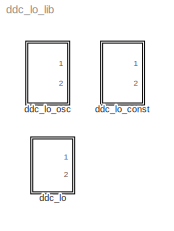
MODEL ddc_lo_lib
KIND library
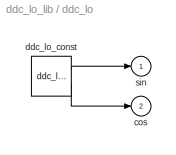
BLOCK [SubSystem] ddc_lo
  BlockChoice = ddc_lo_const
  MemberBlocks = ddc_lo_const,ddc_lo_osc
  MinAlgLoopOccurrences = off
  Ports = [0, 2]
  RTWSystemCode = Auto
  TemplateBlock = self
  TreatAsAtomicUnit = off
BLOCK [Outport] ddc_lo/cos
  BusOutputAsStruct = off
  IconDisplay = Port number
  Port = 2
BLOCK [Reference] ddc_lo/ddc_lo_const  REF=ddc_lo_lib/ddc_lo_const  (lib defined in mdl_6d54943e769e)
  BitWidth = 18
  Phase = 0
  Ports = [0, 2]
  ShowPortLabels = on
  SourceBlock = ddc_lo_lib/ddc_lo_const
  SourceType = ddc_lo_const
BLOCK [Outport] ddc_lo/sin
  BusOutputAsStruct = off
  IconDisplay = Port number
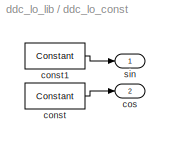
BLOCK [SubSystem] ddc_lo_const
  MaskCallbackString = |
  MaskEnableString = on,on
  MaskIconFrame = on
  MaskIconOpaque = on
  MaskIconRotate = none
  MaskIconUnits = autoscale
  MaskPromptString = Output Bitwidth|Phase (0 to 2*pi)
  MaskSelfModifiable = on
  MaskStyleString = edit,edit
  MaskTabNameString = ,
  MaskToolTipString = on,on
  MaskTunableValueString = on,on
  MaskType = ddc_lo_const
  MaskValueString = 18|0
  MaskVarAliasString = ,
  MaskVariables = BitWidth=@1;Phase=@2;
  MaskVisibilityString = on,on
  MinAlgLoopOccurrences = off
  Ports = [0, 2]
  RTWSystemCode = Auto
  TreatAsAtomicUnit = off
BLOCK [Reference] ddc_lo_const/const  REF=xbsIndex_r3/Constant
  Ports = [0, 1]
  SourceBlock = xbsIndex_r3/Constant
  SourceType = Xilinx Constant Block
  arith_type = Signed  (2's comp)
  bin_pt = BitWidth - 1
  carry = CIN
  const = real(exp(Phase*1j))
  dbl_ovrd = off
  equ = P=C
  explicit_period = on
  inp1 = P
  inp2 = PCIN>>17
  iostate = 0
  n_bits = BitWidth
  opr = +
  opselect = C
  period = 1
BLOCK [Reference] ddc_lo_const/const1  REF=xbsIndex_r3/Constant
  Ports = [0, 1]
  SourceBlock = xbsIndex_r3/Constant
  SourceType = Xilinx Constant Block
  arith_type = Signed  (2's comp)
  bin_pt = BitWidth - 1
  carry = CIN
  const = -imag(exp(Phase*1j))
  dbl_ovrd = off
  equ = P=C
  explicit_period = on
  inp1 = P
  inp2 = PCIN>>17
  iostate = 0
  n_bits = BitWidth
  opr = +
  opselect = C
  period = 1
BLOCK [Outport] ddc_lo_const/cos
  BusOutputAsStruct = off
  IconDisplay = Port number
  Port = 2
BLOCK [Outport] ddc_lo_const/sin
  BusOutputAsStruct = off
  IconDisplay = Port number
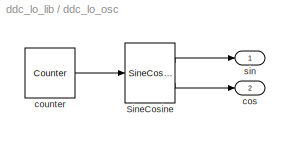
BLOCK [SubSystem] ddc_lo_osc
  MaskCallbackString = ||||
  MaskEnableString = on,on,on,on,on
  MaskIconFrame = on
  MaskIconOpaque = on
  MaskIconRotate = none
  MaskIconUnits = autoscale
  MaskPromptString = Output Bitwidth|counter step|counter start value|Counter Bitwidth|Latency
  MaskSelfModifiable = on
  MaskStyleString = edit,edit,edit,edit,edit
  MaskTabNameString = ,,,,
  MaskToolTipString = on,on,on,on,on
  MaskTunableValueString = on,on,on,on,on
  MaskType = ddc_lo_osc
  MaskValueString = 18|1|1|4|2
  MaskVarAliasString = ,,,,
  MaskVariables = BitWidth=@1;counter_step=@2;counter_start=@3;counter_width=@4;latency=@5;
  MaskVisibilityString = on,on,on,on,on
  MinAlgLoopOccurrences = off
  Ports = [0, 2]
  RTWSystemCode = Auto
  TreatAsAtomicUnit = off
BLOCK [Reference] ddc_lo_osc/SineCosine  REF=xbsIndex_r3/SineCosine
  Ports = [1, 2]
  SourceBlock = xbsIndex_r3/SineCosine
  SourceType = Xilinx Sine/Cosine Block
  dbl_ovrd = off
  en = off
  explicit_period = off
  gen_core = off
  latency = latency
  mem_type = Block RAM
  mode = Sine and Cosine
  n_bits = BitWidth
  neg_cos = off
  neg_sin = on
  period = 1
  pipeline = on
  show_param = off
  sym_output = off
  use_rpm = on
  xl_area = [0, 0, 0, 0, 0, 0, 0]
  xl_use_area = off
BLOCK [Outport] ddc_lo_osc/cos
  BusOutputAsStruct = off
  IconDisplay = Port number
  Port = 2
BLOCK [Reference] ddc_lo_osc/counter  REF=xbsIndex_r3/Counter
  Ports = [0, 1]
  SourceBlock = xbsIndex_r3/Counter
  SourceType = Xilinx Counter Block
  arith_type = Unsigned
  bin_pt = 0
  cnt_by_val = counter_step
  cnt_to = Inf
  cnt_type = Free Running
  dbl_ovrd = off
  en = off
  explicit_period = off
  gen_core = off
  load_pin = off
  n_bits = counter_width
  operation = Up
  period = 1
  rst = off
  show_param = off
  start_count = counter_start
  use_rpm = on
  xl_area = [0, 0, 0, 0, 0, 0, 0]
  xl_use_area = off
BLOCK [Outport] ddc_lo_osc/sin
  BusOutputAsStruct = off
  IconDisplay = Port number
LINE ddc_lo/ddc_lo_const:1 -> ddc_lo/sin:1
LINE ddc_lo/ddc_lo_const:2 -> ddc_lo/cos:1
LINE ddc_lo_const/const1:1 -> ddc_lo_const/sin:1
LINE ddc_lo_const/const:1 -> ddc_lo_const/cos:1
LINE ddc_lo_osc/SineCosine:1 -> ddc_lo_osc/sin:1
LINE ddc_lo_osc/SineCosine:2 -> ddc_lo_osc/cos:1
LINE ddc_lo_osc/counter:1 -> ddc_lo_osc/SineCosine:1
